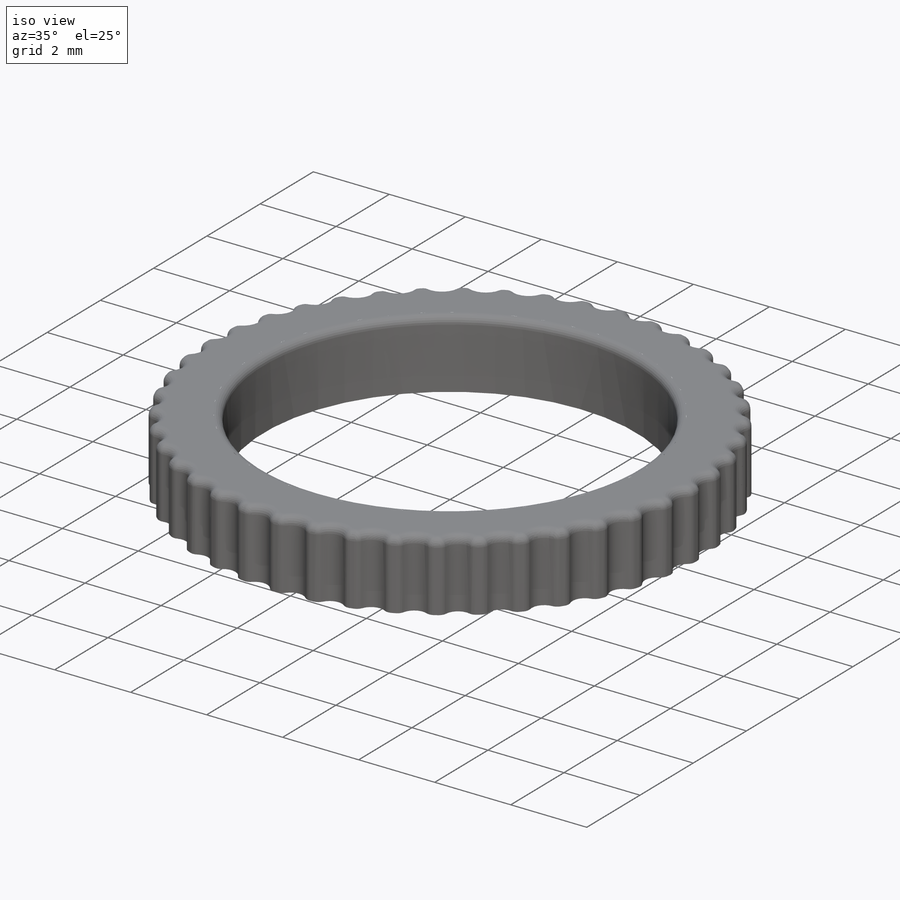
[diagram: iso view]
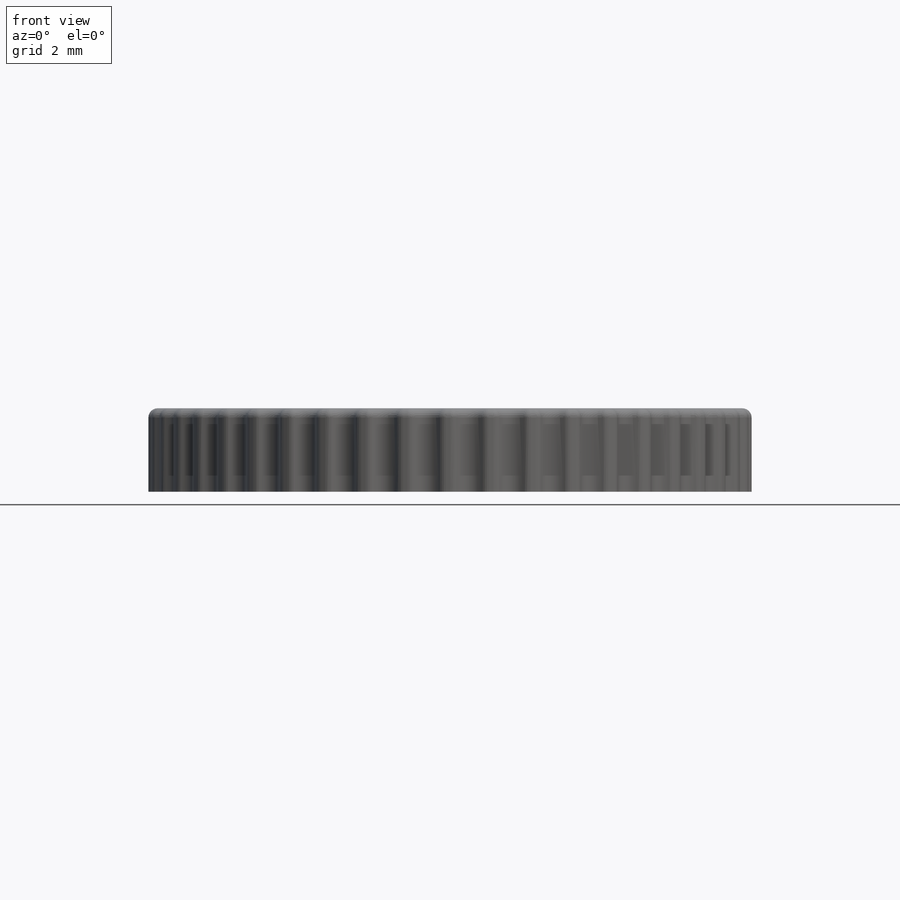
[diagram: front view]
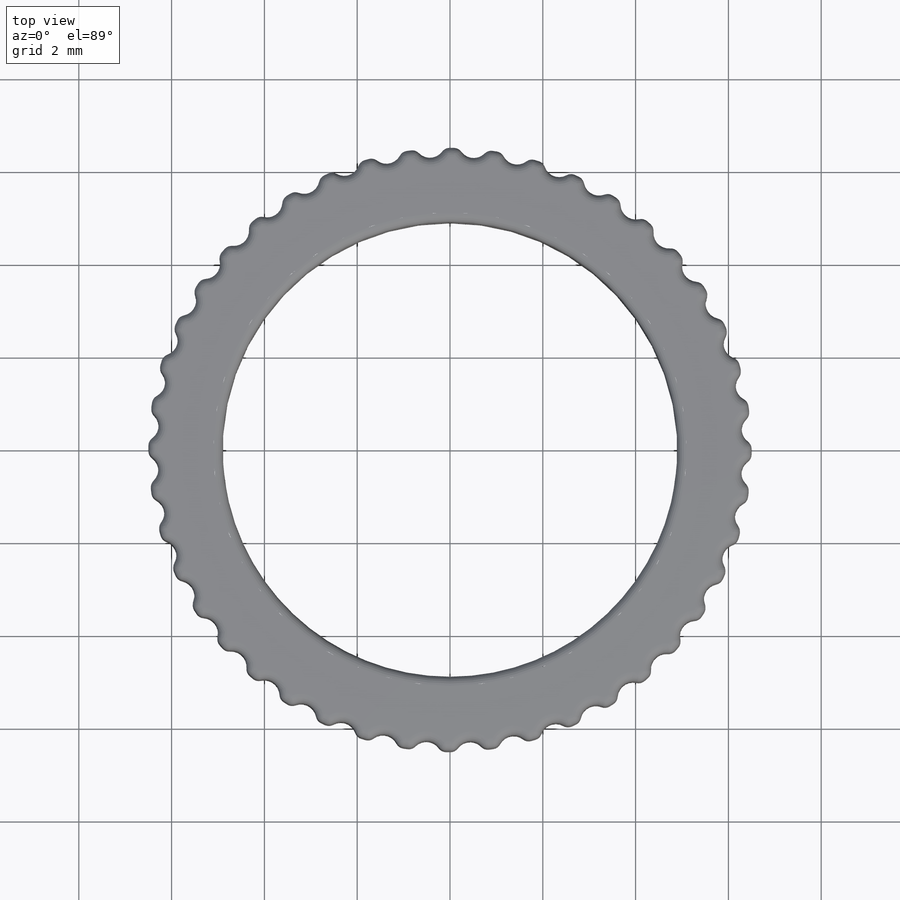
[diagram: top view]
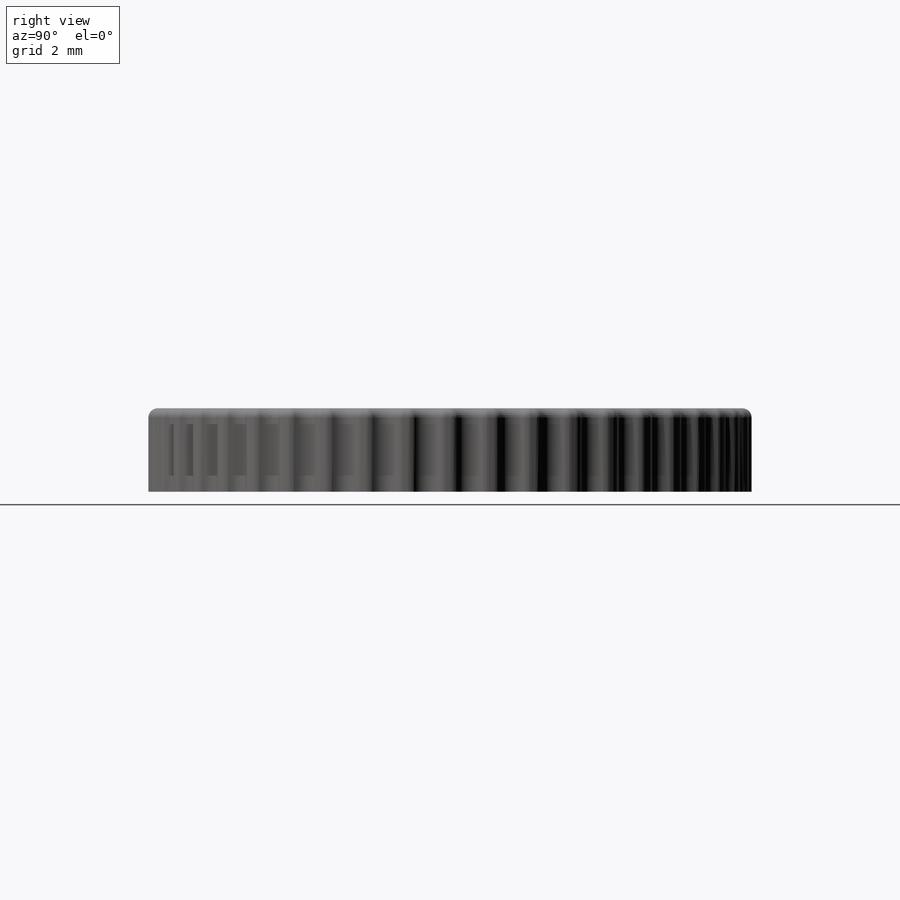
[diagram: right view]
SOLIDWORKS PART (.sldprt)
format: sldprt  version: not decoded by parser v0  size: 1,149,952 bytes
history: native  units: mm
features: plane x3, fillet x3, sketch x2, material x1, extrude x1, cut_extrude x1 (+10 scaffold rows collapsed)
feature tree (21):
  scaffold x10  (default folders/planes/origin — collapsed)
  material  "Matériau <non spécifié>"
  plane  "Plan de face"
  plane  "Plan de dessus"
  plane  "Plan de droite"
  sketch  "Esquisse1"  dims[D1=9.8mm D2=13.0mm]
  extrude  "Boss.-Extru.1"  Depth=1.8mm
  sketch  "Esquisse2"  dims[c1.D1=0.2mm c1.D2=0.6mm c1.D3=~4.275645mm c2.D2=~0.59871mm c2.D3=44.0]
  cut_extrude  "Enlèv. mat.-Extru.1"  Depth=1.8mm
  fillet  "Congé2"  Radius=0.2mm
  fillet  "Congé3"  Radius=0.2mm
  fillet  "Congé4"  Radius=0.2mm
decode coverage: 7 of 7 modeling features carry decoded parameters
note: ~ marks probable driven/reference dimensions
note: suppression state not decoded; provenance and decode notes live in map.json
